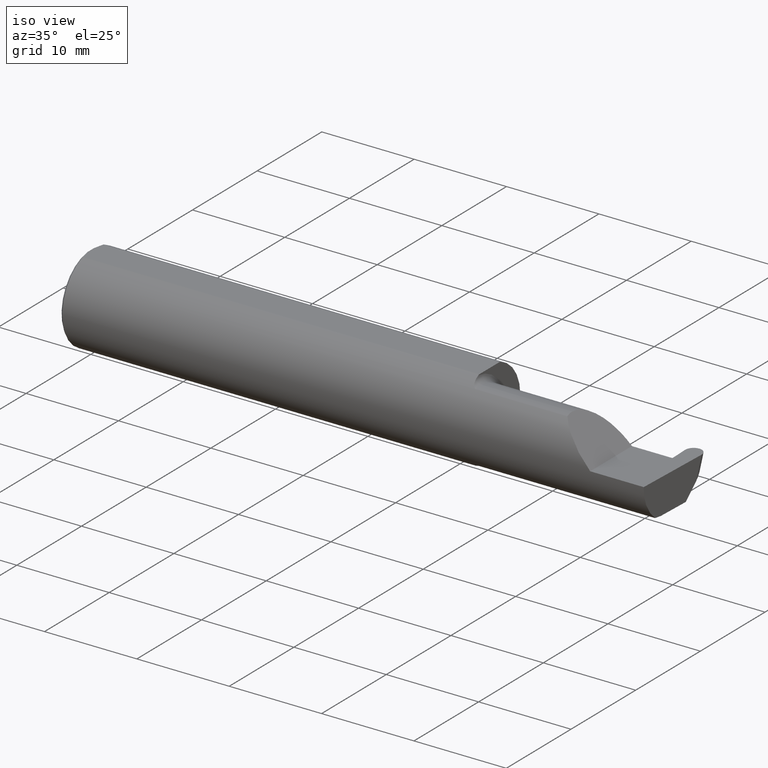
[diagram: clean part render]
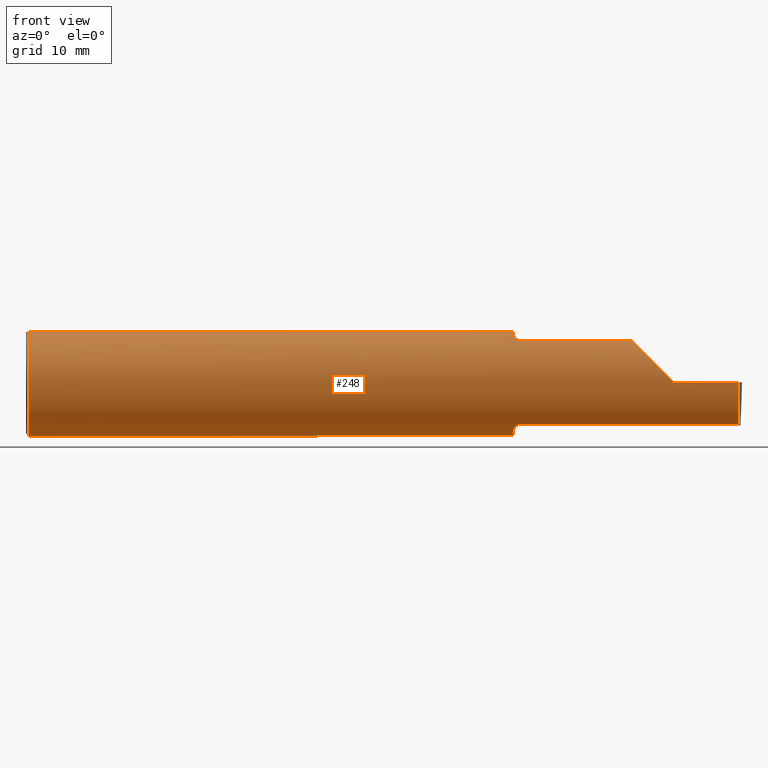
[diagram: tour spotlight — one face highlighted and labeled with its STEP entity id]
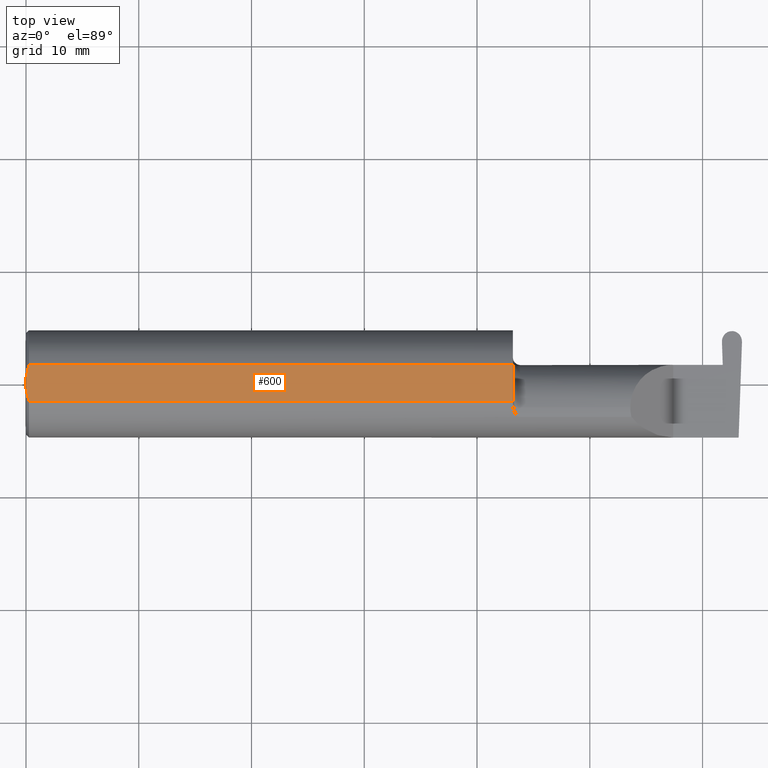
[diagram: tour spotlight — one face highlighted and labeled with its STEP entity id]
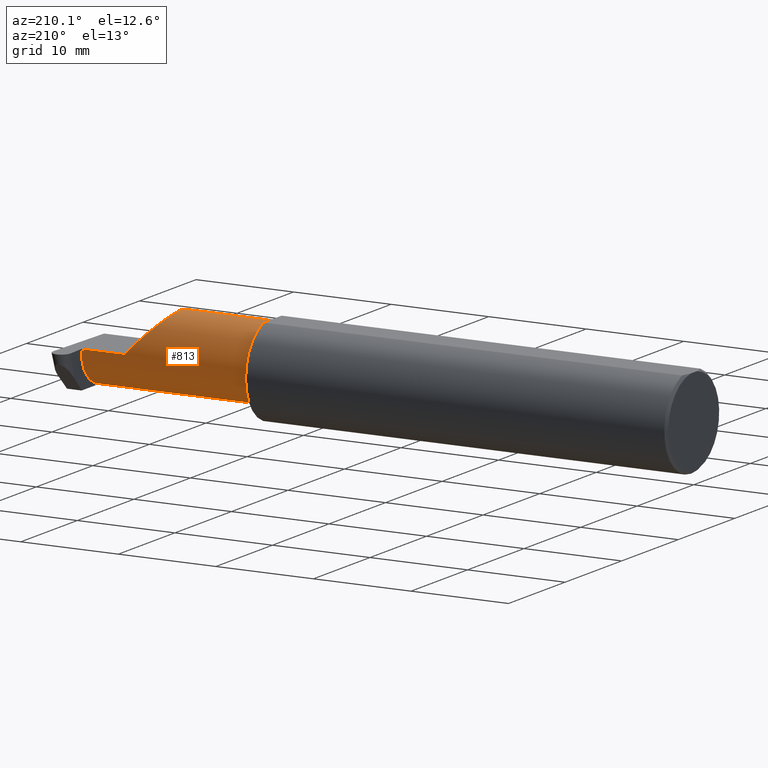
[diagram: tour spotlight — one face highlighted and labeled with its STEP entity id]
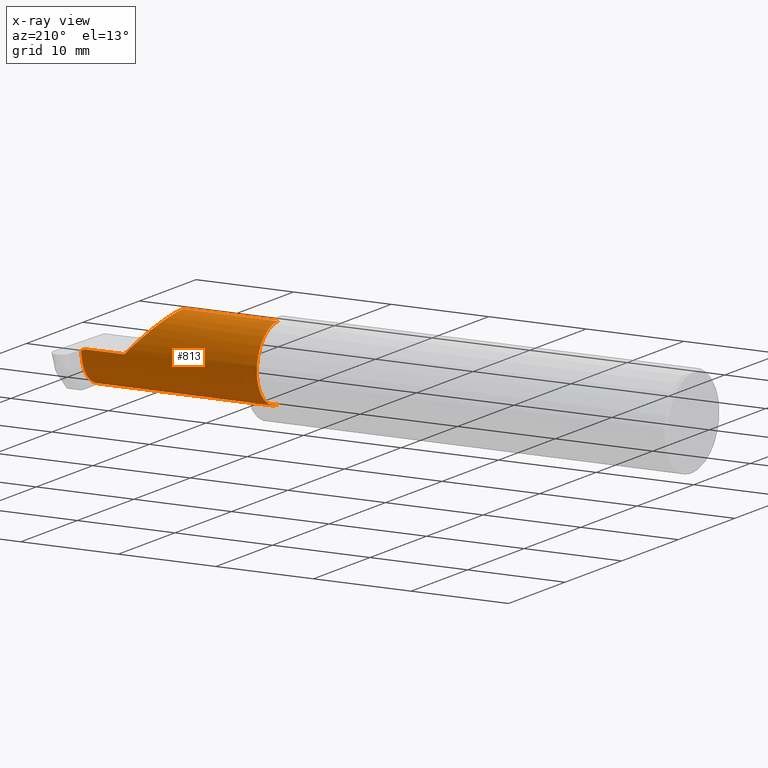
[diagram: x-ray of the same camera — body ghosted, this tour face saturated]
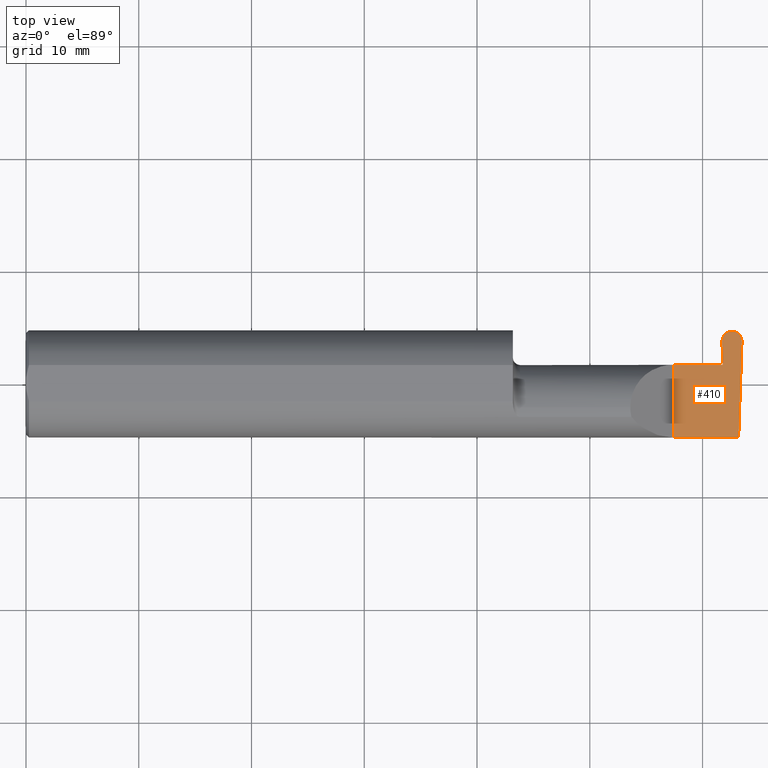
[diagram: tour spotlight — one face highlighted and labeled with its STEP entity id]
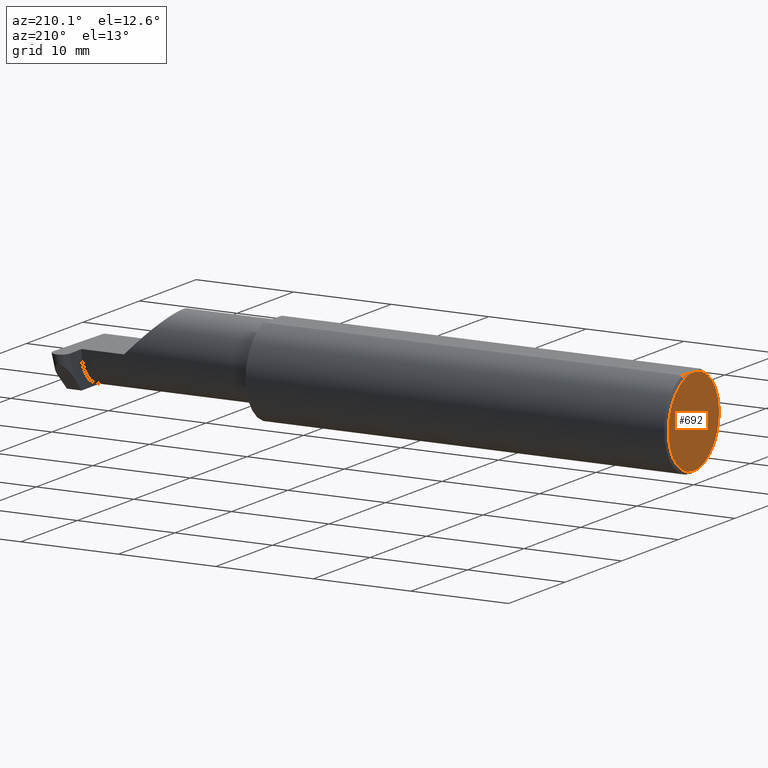
[diagram: tour spotlight — one face highlighted and labeled with its STEP entity id]
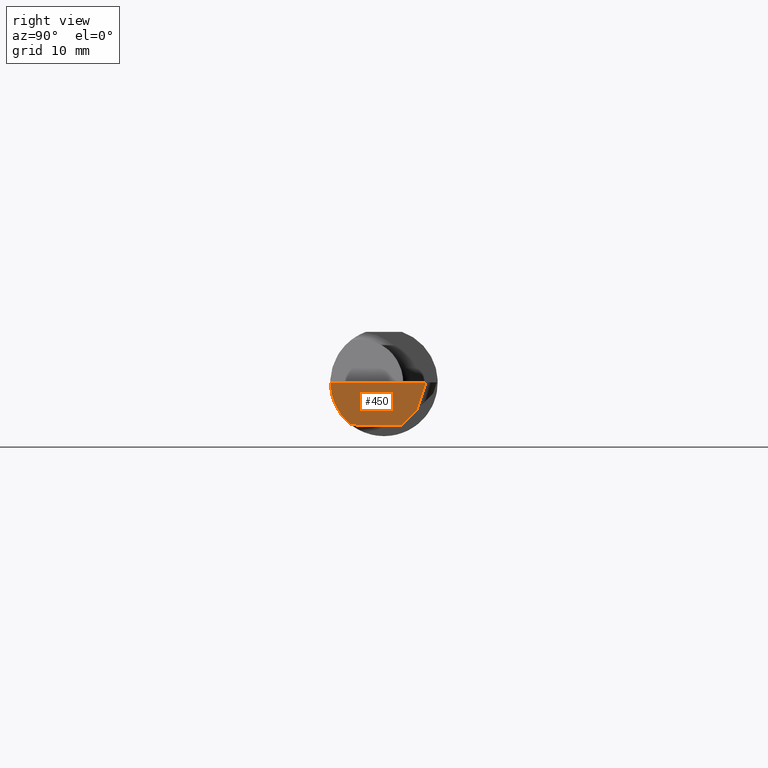
[diagram: tour spotlight — one face highlighted and labeled with its STEP entity id]
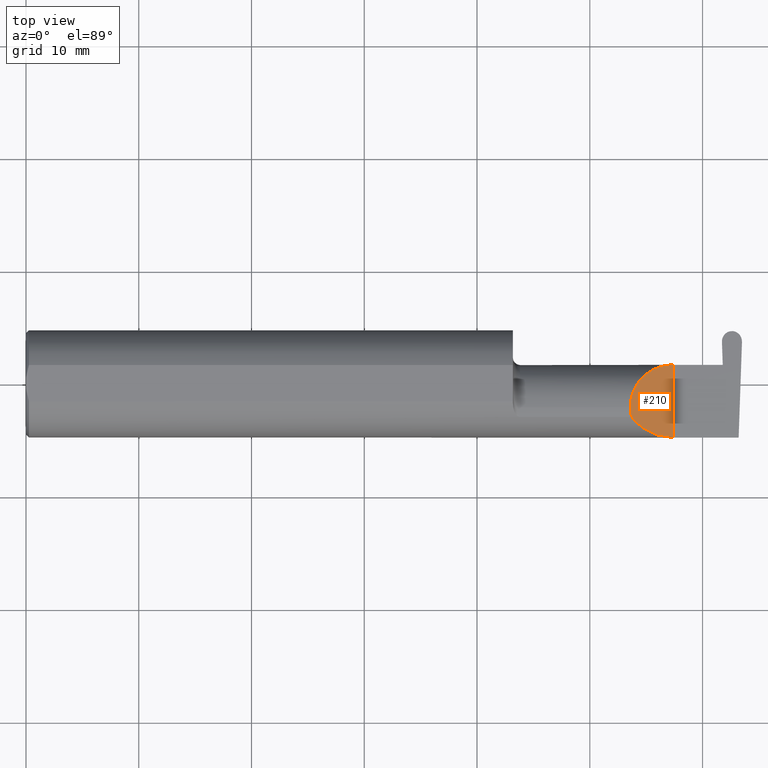
[diagram: tour spotlight — one face highlighted and labeled with its STEP entity id]
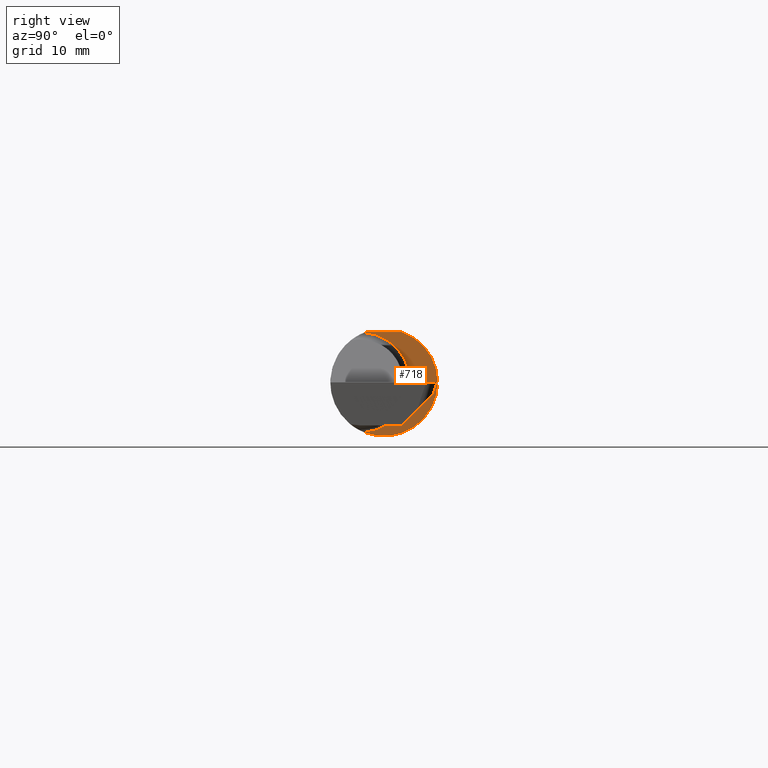
[diagram: tour spotlight — one face highlighted and labeled with its STEP entity id]
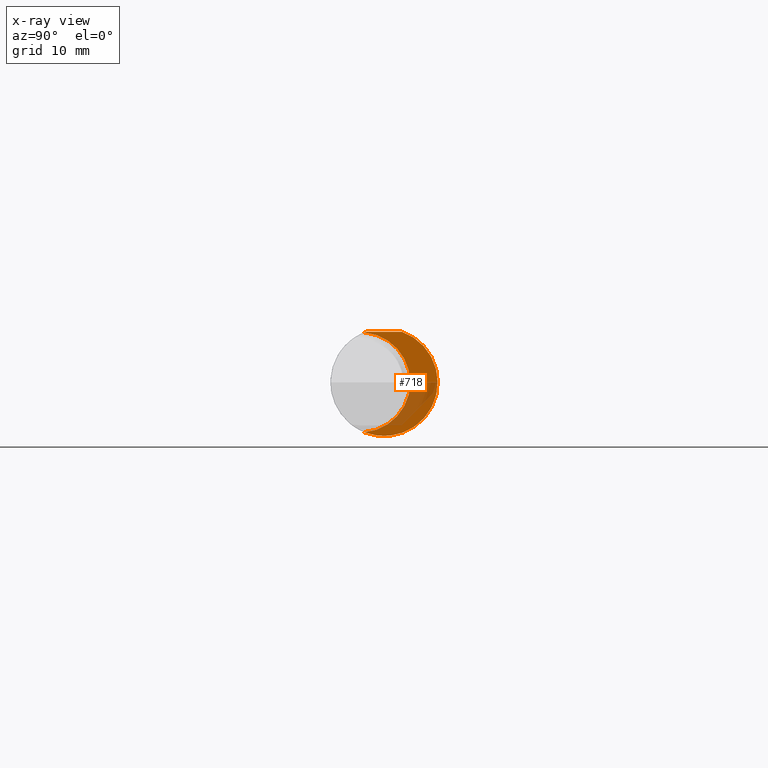
[diagram: x-ray of the same camera — body ghosted, this tour face saturated]
A machine part: a face-by-face anatomy tour. The part has 23 B-rep faces; the first image is the clean iso view, then the 8 largest visible faces are spotlighted one at a time (largest first), each with its STEP entity span.

Face 1 — front view, entity #248. In plain terms, the highlighted cylindrical surface (partial cylindrical patch) has radius 4.7587 mm, axis along (-1, -0, -0).
Definition (entity closure, byte-faithful):
#4 = CARTESIAN_POINT ( 'NONE',  ( 2.113883229301068312, -0.1172600179964008171, 0.1461167706989301707 ) ) ;
#5 = CARTESIAN_POINT ( 'NONE',  ( 2.260000000000000231, -0.1873499999999999888, 2.939152317953647352E-17 ) ) ;
#7 = ORIENTED_EDGE ( 'NONE', *, *, #563, .T. ) ;
#13 = DIRECTION ( 'NONE',  ( 0.000000000000000000, 0.000000000000000000, 1.000000000000000000 ) ) ;
#16 = EDGE_CURVE ( 'NONE', #363, #76, #395, .T. ) ;
#17 = CARTESIAN_POINT ( 'NONE',  ( 1.699999999999999956, -0.06851976604679071992, -0.1743704796142198366 ) ) ;
#19 = ORIENTED_EDGE ( 'NONE', *, *, #435, .F. ) ;
#20 = DIRECTION ( 'NONE',  ( 1.000000000000000000, 0.000000000000000000, 0.000000000000000000 ) ) ;
#28 = LINE ( 'NONE', #216, #393 ) ;
#37 = CARTESIAN_POINT ( 'NONE',  ( 1.705806801261507077, -0.1009700360460132340, -0.1578590382459147401 ) ) ;
#48 = CIRCLE ( 'NONE', #748, 0.1873499999999999888 ) ;
#67 = EDGE_CURVE ( 'NONE', #76, #663, #752, .T. ) ;
#74 = CARTESIAN_POINT ( 'NONE',  ( 0.01000000000000013205, 0.000000000000000000, 0.000000000000000000 ) ) ;
#75 = CYLINDRICAL_SURFACE ( 'NONE', #215, 0.1873499999999999888 ) ;
#76 = VERTEX_POINT ( 'NONE', #490 ) ;
#77 = B_SPLINE_CURVE_WITH_KNOTS ( 'NONE', 3,
 ( #404, #796, #341, #281, #658, #729, #662, #37, #97, #278, #336, #530 ),
 .UNSPECIFIED., .F., .F.,
 ( 4, 2, 2, 2, 2, 4 ),
 ( 1.967976973658592312E-07, 0.0001599896235275545693, 0.0003197824493577432442, 0.0006393681010181212444, 0.0009589537526784992988, 0.001278539404338877245 ),
 .UNSPECIFIED. ) ;
#78 = EDGE_CURVE ( 'NONE', #805, #495, #553, .T. ) ;
#85 = ORIENTED_EDGE ( 'NONE', *, *, #539, .F. ) ;
#87 = CARTESIAN_POINT ( 'NONE',  ( 1.699999999999999289, -0.07360907839729502466, 0.1723706084642000480 ) ) ;
#91 = ORIENTED_EDGE ( 'NONE', *, *, #131, .T. ) ;
#94 =( BOUNDED_CURVE ( )  B_SPLINE_CURVE ( 3, ( #5, #251, #233, #630 ),
 .UNSPECIFIED., .F., .T. ) 
 B_SPLINE_CURVE_WITH_KNOTS ( ( 4, 4 ),
 ( 4.712388980384688786, 5.606916381293135743 ),
 .UNSPECIFIED. ) 
 CURVE ( )  GEOMETRIC_REPRESENTATION_ITEM ( )  RATIONAL_B_SPLINE_CURVE ( ( 1.000000000000000000, 0.9344226172588803170, 0.9344226172588803170, 1.000000000000000000 ) ) 
 REPRESENTATION_ITEM ( '' )  );
#97 = CARTESIAN_POINT ( 'NONE',  ( 1.704475235432781455, -0.09757364237049408195, -0.1599863467203317680 ) ) ;
#98 = ORIENTED_EDGE ( 'NONE', *, *, #139, .F. ) ;
#100 = CARTESIAN_POINT ( 'NONE',  ( 0.01000000000000013205, 0.06325108694718235836, 0.1763499999999999235 ) ) ;
#110 = AXIS2_PLACEMENT_3D ( 'NONE', #792, #340, #593 ) ;
#115 = CARTESIAN_POINT ( 'NONE',  ( 1.724999999999999867, -0.1172600179964006645, 0.1461167706989303372 ) ) ;
#117 = ORIENTED_EDGE ( 'NONE', *, *, #271, .T. ) ;
#121 = ORIENTED_EDGE ( 'NONE', *, *, #78, .F. ) ;
#131 = EDGE_CURVE ( 'NONE', #663, #495, #94, .T. ) ;
#139 = EDGE_CURVE ( 'NONE', #358, #253, #418, .T. ) ;
#145 = CARTESIAN_POINT ( 'NONE',  ( 1.701062863587535334, -0.08334999999999991027, -0.1677879614275112619 ) ) ;
#165 = EDGE_CURVE ( 'NONE', #363, #794, #187, .T. ) ;
#167 = CARTESIAN_POINT ( 'NONE',  ( 1.720724556588812071, -0.1172600179964061184, 0.1461167706989260351 ) ) ;
#176 = VECTOR ( 'NONE', #616, 39.37007874015748143 ) ;
#180 = DIRECTION ( 'NONE',  ( 1.000000000000000000, 0.000000000000000000, 0.000000000000000000 ) ) ;
#187 = LINE ( 'NONE', #193, #176 ) ;
#189 = VERTEX_POINT ( 'NONE', #319 ) ;
#193 = CARTESIAN_POINT ( 'NONE',  ( 2.077422719999999945, -0.1172600179964006784, -0.1461167706989303650 ) ) ;
#195 = CARTESIAN_POINT ( 'NONE',  ( 1.700344683557281300, -0.07855153123406186100, 0.1701716388274757408 ) ) ;
#202 = ORIENTED_EDGE ( 'NONE', *, *, #16, .T. ) ;
#204 = DIRECTION ( 'NONE',  ( 0.000000000000000000, 0.000000000000000000, -1.000000000000000000 ) ) ;
#215 = AXIS2_PLACEMENT_3D ( 'NONE', #378, #707, #13 ) ;
#216 = CARTESIAN_POINT ( 'NONE',  ( 0.000000000000000000, 0.06325108694718235836, 0.1763499999999999235 ) ) ;
#222 = ORIENTED_EDGE ( 'NONE', *, *, #632, .F. ) ;
#229 = CARTESIAN_POINT ( 'NONE',  ( 1.704075010165368775, -0.09778159395695865119, 0.1599914159748310472 ) ) ;
#233 = CARTESIAN_POINT ( 'NONE',  ( 2.150065971957465294, -0.1623470442677542591, 0.1099340280425336325 ) ) ;
#241 = VERTEX_POINT ( 'NONE', #145 ) ;
#248 = ADVANCED_FACE ( 'NONE', ( #269 ), #75, .T. ) ;
#251 = CARTESIAN_POINT ( 'NONE',  ( 2.202189699843948745, -0.1873500000000000443, 0.05781030015605096578 ) ) ;
#253 = VERTEX_POINT ( 'NONE', #261 ) ;
#260 = CARTESIAN_POINT ( 'NONE',  ( 0.000000000000000000, -0.06325108694718235836, 0.1763499999999999235 ) ) ;
#261 = CARTESIAN_POINT ( 'NONE',  ( 1.699999999999999956, -0.06851976604679071992, 0.1743704796142198366 ) ) ;
#269 = FACE_OUTER_BOUND ( 'NONE', #777, .T. ) ;
#270 = ORIENTED_EDGE ( 'NONE', *, *, #413, .F. ) ;
#271 = EDGE_CURVE ( 'NONE', #491, #189, #326, .T. ) ;
#274 = VERTEX_POINT ( 'NONE', #785 ) ;
#278 = CARTESIAN_POINT ( 'NONE',  ( 1.702380638915944600, -0.09060738690120614947, -0.1640321561807271122 ) ) ;
#281 = CARTESIAN_POINT ( 'NONE',  ( 1.717163414264744281, -0.1151183835841406849, -0.1478135984872520625 ) ) ;
#284 = CARTESIAN_POINT ( 'NONE',  ( 1.702158970028690321, -0.09067355718685707333, 0.1641499263364886718 ) ) ;
#316 = DIRECTION ( 'NONE',  ( 1.000000000000000000, 0.000000000000000000, 0.000000000000000000 ) ) ;
#317 = ORIENTED_EDGE ( 'NONE', *, *, #767, .F. ) ;
#319 = CARTESIAN_POINT ( 'NONE',  ( 0.01000000000000013205, 0.000000000000000000, -0.1873499999999999888 ) ) ;
#326 = CIRCLE ( 'NONE', #655, 0.1873499999999999888 ) ;
#332 = CARTESIAN_POINT ( 'NONE',  ( 2.488151344270815635, -0.1172600179964006784, -0.1461167706989303650 ) ) ;
#333 = VERTEX_POINT ( 'NONE', #653 ) ;
#336 = CARTESIAN_POINT ( 'NONE',  ( 1.701612951569643872, -0.08702537370779857284, -0.1659621904011592819 ) ) ;
#340 = DIRECTION ( 'NONE',  ( 1.000000000000000000, 0.000000000000000000, 0.000000000000000000 ) ) ;
#341 = CARTESIAN_POINT ( 'NONE',  ( 1.720804171164107332, -0.1167508198888949772, -0.1465276362740037253 ) ) ;
#342 = CARTESIAN_POINT ( 'NONE',  ( 2.487246082891137355, -0.1873500000000000165, -0.05781030015605123640 ) ) ;
#357 = DIRECTION ( 'NONE',  ( -1.000000000000000000, -0.000000000000000000, -0.000000000000000000 ) ) ;
#358 = VERTEX_POINT ( 'NONE', #507 ) ;
#362 = DIRECTION ( 'NONE',  ( 1.000000000000000000, 0.000000000000000000, 0.000000000000000000 ) ) ;
#363 = VERTEX_POINT ( 'NONE', #332 ) ;
#368 = CARTESIAN_POINT ( 'NONE',  ( 1.699999999999999956, 0.000000000000000000, 0.000000000000000000 ) ) ;
#370 = CARTESIAN_POINT ( 'NONE',  ( 2.077422719999999945, -0.1172600179964006784, 0.1461167706989303650 ) ) ;
#376 = DIRECTION ( 'NONE',  ( 1.000000000000000000, 0.000000000000000000, 0.000000000000000000 ) ) ;
#378 = CARTESIAN_POINT ( 'NONE',  ( 0.000000000000000000, 0.000000000000000000, 0.000000000000000000 ) ) ;
#393 = VECTOR ( 'NONE', #520, 39.37007874015748143 ) ;
#395 =( BOUNDED_CURVE ( )  B_SPLINE_CURVE ( 3, ( #531, #405, #342, #602 ),
 .UNSPECIFIED., .F., .T. ) 
 B_SPLINE_CURVE_WITH_KNOTS ( ( 4, 4 ),
 ( 5.852427379562161747, 6.746954780470609592 ),
 .UNSPECIFIED. ) 
 CURVE ( )  GEOMETRIC_REPRESENTATION_ITEM ( )  RATIONAL_B_SPLINE_CURVE ( ( 1.000000000000000000, 0.9344226172588802060, 0.9344226172588802060, 1.000000000000000000 ) ) 
 REPRESENTATION_ITEM ( '' )  );
#404 = CARTESIAN_POINT ( 'NONE',  ( 1.724999999999999867, -0.1172600179964006784, -0.1461167706989303650 ) ) ;
#405 = CARTESIAN_POINT ( 'NONE',  ( 2.487208827712860337, -0.1623470442677540926, -0.1099340280425339100 ) ) ;
#413 = EDGE_CURVE ( 'NONE', #794, #241, #77, .T. ) ;
#418 = CIRCLE ( 'NONE', #680, 0.1873499999999999888 ) ;
#435 = EDGE_CURVE ( 'NONE', #274, #805, #668, .T. ) ;
#445 = ORIENTED_EDGE ( 'NONE', *, *, #165, .F. ) ;
#471 = CARTESIAN_POINT ( 'NONE',  ( 1.701062863587533558, -0.08334999999998819742, 0.1677879614275170628 ) ) ;
#476 = CARTESIAN_POINT ( 'NONE',  ( 1.711319809340845488, -0.1102629523538396217, 0.1514982751257169802 ) ) ;
#485 = VECTOR ( 'NONE', #180, 39.37007874015748143 ) ;
#487 = CARTESIAN_POINT ( 'NONE',  ( 3.749399456654646757E-32, -0.1873499999999999610, 3.061616997868383634E-16 ) ) ;
#490 = CARTESIAN_POINT ( 'NONE',  ( 2.488255780514392335, -0.1873499999999999888, 0.000000000000000000 ) ) ;
#491 = VERTEX_POINT ( 'NONE', #683 ) ;
#495 = VERTEX_POINT ( 'NONE', #4 ) ;
#507 = CARTESIAN_POINT ( 'NONE',  ( 1.699999999999999956, -0.06325108694718287183, 0.1763499999999999235 ) ) ;
#517 = CARTESIAN_POINT ( 'NONE',  ( 1.701062863587533558, -0.08334999999998819742, 0.1677879614275170628 ) ) ;
#520 = DIRECTION ( 'NONE',  ( -1.000000000000000000, -0.000000000000000000, -0.000000000000000000 ) ) ;
#527 = CIRCLE ( 'NONE', #110, 0.1873499999999999888 ) ;
#530 = CARTESIAN_POINT ( 'NONE',  ( 1.701062863587535334, -0.08334999999999991027, -0.1677879614275112619 ) ) ;
#531 = CARTESIAN_POINT ( 'NONE',  ( 2.488151344270815635, -0.1172600179964006784, -0.1461167706989303650 ) ) ;
#537 = CARTESIAN_POINT ( 'NONE',  ( 1.709249444250374728, -0.1073163636891285855, 0.1536158790136665231 ) ) ;
#539 = EDGE_CURVE ( 'NONE', #253, #274, #807, .T. ) ;
#546 = EDGE_CURVE ( 'NONE', #241, #762, #618, .T. ) ;
#553 = LINE ( 'NONE', #370, #485 ) ;
#559 = ORIENTED_EDGE ( 'NONE', *, *, #546, .F. ) ;
#563 = EDGE_CURVE ( 'NONE', #189, #701, #48, .T. ) ;
#572 = CARTESIAN_POINT ( 'NONE',  ( 1.699999999999999956, -0.07359296612170568297, -0.1723769398647691520 ) ) ;
#575 = LINE ( 'NONE', #260, #614 ) ;
#580 = CARTESIAN_POINT ( 'NONE',  ( 0.01000000000000013205, 0.000000000000000000, 0.000000000000000000 ) ) ;
#587 = CARTESIAN_POINT ( 'NONE',  ( 1.724999999999999867, -0.1172600179964006645, 0.1461167706989303372 ) ) ;
#593 = DIRECTION ( 'NONE',  ( 0.000000000000000000, 0.000000000000000000, -1.000000000000000000 ) ) ;
#602 = CARTESIAN_POINT ( 'NONE',  ( 2.488255780514392335, -0.1873499999999999888, 0.000000000000000000 ) ) ;
#607 = ORIENTED_EDGE ( 'NONE', *, *, #67, .T. ) ;
#614 = VECTOR ( 'NONE', #20, 39.37007874015748143 ) ;
#616 = DIRECTION ( 'NONE',  ( -1.000000000000000000, -0.000000000000000000, -0.000000000000000000 ) ) ;
#618 = B_SPLINE_CURVE_WITH_KNOTS ( 'NONE', 3,
 ( #768, #764, #572, #17 ),
 .UNSPECIFIED., .F., .F.,
 ( 4, 4 ),
 ( 0.001278539404338877245, 0.001694873732696222440 ),
 .UNSPECIFIED. ) ;
#630 = CARTESIAN_POINT ( 'NONE',  ( 2.113883229301068312, -0.1172600179964008171, 0.1461167706989301707 ) ) ;
#632 = EDGE_CURVE ( 'NONE', #491, #358, #575, .T. ) ;
#653 = CARTESIAN_POINT ( 'NONE',  ( 1.699999999999999956, 0.06325108694718235836, 0.1763499999999999235 ) ) ;
#655 = AXIS2_PLACEMENT_3D ( 'NONE', #580, #316, #773 ) ;
#656 = ORIENTED_EDGE ( 'NONE', *, *, #712, .F. ) ;
#658 = CARTESIAN_POINT ( 'NONE',  ( 1.715551048069661411, -0.1140002044565611578, -0.1486821290834929865 ) ) ;
#662 = CARTESIAN_POINT ( 'NONE',  ( 1.709228130464466533, -0.1072797540790368376, -0.1536407449207395637 ) ) ;
#663 = VERTEX_POINT ( 'NONE', #719 ) ;
#668 = B_SPLINE_CURVE_WITH_KNOTS ( 'NONE', 3,
 ( #471, #284, #229, #537, #476, #738, #167, #115 ),
 .UNSPECIFIED., .F., .F.,
 ( 4, 2, 2, 4 ),
 ( 0.0004561457252213466573, 0.001084815134961801542, 0.001399149839832030014, 0.001713484544702258486 ),
 .UNSPECIFIED. ) ;
#680 = AXIS2_PLACEMENT_3D ( 'NONE', #368, #362, #700 ) ;
#683 = CARTESIAN_POINT ( 'NONE',  ( 0.01000000000000013205, -0.06325108694718235836, 0.1763499999999999235 ) ) ;
#696 = VECTOR ( 'NONE', #357, 39.37007874015748143 ) ;
#700 = DIRECTION ( 'NONE',  ( 0.000000000000000000, 0.000000000000000000, -1.000000000000000000 ) ) ;
#701 = VERTEX_POINT ( 'NONE', #100 ) ;
#702 = CARTESIAN_POINT ( 'NONE',  ( 1.699999999999999956, -0.06851976604679071992, 0.1743704796142198366 ) ) ;
#707 = DIRECTION ( 'NONE',  ( -1.000000000000000000, -0.000000000000000000, -0.000000000000000000 ) ) ;
#712 = EDGE_CURVE ( 'NONE', #762, #333, #527, .T. ) ;
#719 = CARTESIAN_POINT ( 'NONE',  ( 2.260000000000000231, -0.1873499999999999888, 2.939152317953647352E-17 ) ) ;
#729 = CARTESIAN_POINT ( 'NONE',  ( 1.711340974786206282, -0.1102890168945987320, -0.1514792188789464700 ) ) ;
#731 = CARTESIAN_POINT ( 'NONE',  ( 1.724999999999999867, -0.1172600179964006784, -0.1461167706989303650 ) ) ;
#738 = CARTESIAN_POINT ( 'NONE',  ( 1.716924463282974322, -0.1152182125075827540, 0.1477647100440765970 ) ) ;
#748 = AXIS2_PLACEMENT_3D ( 'NONE', #74, #376, #204 ) ;
#752 = LINE ( 'NONE', #487, #696 ) ;
#762 = VERTEX_POINT ( 'NONE', #795 ) ;
#764 = CARTESIAN_POINT ( 'NONE',  ( 1.700346246588684940, -0.07856197451716398494, -0.1701664510438046507 ) ) ;
#767 = EDGE_CURVE ( 'NONE', #333, #701, #28, .T. ) ;
#768 = CARTESIAN_POINT ( 'NONE',  ( 1.701062863587535334, -0.08334999999999991027, -0.1677879614275112619 ) ) ;
#773 = DIRECTION ( 'NONE',  ( 0.000000000000000000, 0.000000000000000000, -1.000000000000000000 ) ) ;
#777 = EDGE_LOOP ( 'NONE', ( #445, #202, #607, #91, #121, #19, #85, #98, #222, #117, #7, #317, #656, #559, #270 ) ) ;
#785 = CARTESIAN_POINT ( 'NONE',  ( 1.701062863587533558, -0.08334999999998819742, 0.1677879614275170628 ) ) ;
#792 = CARTESIAN_POINT ( 'NONE',  ( 1.699999999999999956, 0.000000000000000000, 0.000000000000000000 ) ) ;
#794 = VERTEX_POINT ( 'NONE', #731 ) ;
#795 = CARTESIAN_POINT ( 'NONE',  ( 1.699999999999999956, -0.06851976604679071992, -0.1743704796142198366 ) ) ;
#796 = CARTESIAN_POINT ( 'NONE',  ( 1.722868998470238333, -0.1172600179964006922, -0.1461167706989302539 ) ) ;
#805 = VERTEX_POINT ( 'NONE', #587 ) ;
#807 = B_SPLINE_CURVE_WITH_KNOTS ( 'NONE', 3,
 ( #702, #87, #195, #517 ),
 .UNSPECIFIED., .F., .F.,
 ( 4, 4 ),
 ( 4.423516731080805653E-05, 0.0004561457252213466573 ),
 .UNSPECIFIED. ) ;

Face 2 — top view, entity #600. In plain terms, the highlighted planar face has unit normal (0, 0, 1).
Definition (entity closure, byte-faithful):
#11 = B_SPLINE_CURVE_WITH_KNOTS ( 'NONE', 3,
 ( #132, #196, #213, #384 ),
 .UNSPECIFIED., .F., .F.,
 ( 4, 4 ),
 ( 0.009771445421851331775, 0.01092787937989104369 ),
 .UNSPECIFIED. ) ;
#20 = DIRECTION ( 'NONE',  ( 1.000000000000000000, 0.000000000000000000, 0.000000000000000000 ) ) ;
#28 = LINE ( 'NONE', #216, #393 ) ;
#41 = CARTESIAN_POINT ( 'NONE',  ( 0.000000000000000000, 0.01880691362238934988, 0.1763499999999999235 ) ) ;
#61 = ORIENTED_EDGE ( 'NONE', *, *, #191, .F. ) ;
#99 = EDGE_CURVE ( 'NONE', #358, #333, #428, .T. ) ;
#100 = CARTESIAN_POINT ( 'NONE',  ( 0.01000000000000013205, 0.06325108694718235836, 0.1763499999999999235 ) ) ;
#132 = CARTESIAN_POINT ( 'NONE',  ( 0.01000000000000013205, -0.06325108694718235836, 0.1763499999999999235 ) ) ;
#148 = DIRECTION ( 'NONE',  ( -0.000000000000000000, 1.000000000000000000, -0.000000000000000000 ) ) ;
#170 = EDGE_LOOP ( 'NONE', ( #197, #515, #637, #194, #570, #61 ) ) ;
#183 = DIRECTION ( 'NONE',  ( 0.000000000000000000, 1.000000000000000000, 0.000000000000000000 ) ) ;
#191 = EDGE_CURVE ( 'NONE', #491, #730, #11, .T. ) ;
#194 = ORIENTED_EDGE ( 'NONE', *, *, #778, .F. ) ;
#196 = CARTESIAN_POINT ( 'NONE',  ( 0.005151108632379722968, -0.04888864921576022843, 0.1763499999999999235 ) ) ;
#197 = ORIENTED_EDGE ( 'NONE', *, *, #632, .T. ) ;
#207 = DIRECTION ( 'NONE',  ( 0.000000000000000000, 0.000000000000000000, 1.000000000000000000 ) ) ;
#208 = LINE ( 'NONE', #584, #565 ) ;
#211 = B_SPLINE_CURVE_WITH_KNOTS ( 'NONE', 3,
 ( #283, #529, #536, #409 ),
 .UNSPECIFIED., .F., .F.,
 ( 4, 4 ),
 ( 0.01188664626022242071, 0.01304646959483746725 ),
 .UNSPECIFIED. ) ;
#213 = CARTESIAN_POINT ( 'NONE',  ( 0.001595548104417008695, -0.03385300050298640367, 0.1763499999999999235 ) ) ;
#216 = CARTESIAN_POINT ( 'NONE',  ( 0.000000000000000000, 0.06325108694718235836, 0.1763499999999999235 ) ) ;
#260 = CARTESIAN_POINT ( 'NONE',  ( 0.000000000000000000, -0.06325108694718235836, 0.1763499999999999235 ) ) ;
#283 = CARTESIAN_POINT ( 'NONE',  ( 0.000000000000000000, 0.01880691362238934988, 0.1763499999999999235 ) ) ;
#329 = EDGE_CURVE ( 'NONE', #730, #426, #208, .T. ) ;
#333 = VERTEX_POINT ( 'NONE', #653 ) ;
#338 = AXIS2_PLACEMENT_3D ( 'NONE', #779, #207, #512 ) ;
#358 = VERTEX_POINT ( 'NONE', #507 ) ;
#384 = CARTESIAN_POINT ( 'NONE',  ( 0.000000000000000000, -0.01880691362238934641, 0.1763499999999999235 ) ) ;
#393 = VECTOR ( 'NONE', #520, 39.37007874015748143 ) ;
#409 = CARTESIAN_POINT ( 'NONE',  ( 0.01000000000000013205, 0.06325108694718235836, 0.1763499999999999235 ) ) ;
#426 = VERTEX_POINT ( 'NONE', #41 ) ;
#428 = LINE ( 'NONE', #757, #750 ) ;
#454 = CARTESIAN_POINT ( 'NONE',  ( 0.000000000000000000, -0.01880691362238934641, 0.1763499999999999235 ) ) ;
#491 = VERTEX_POINT ( 'NONE', #683 ) ;
#507 = CARTESIAN_POINT ( 'NONE',  ( 1.699999999999999956, -0.06325108694718287183, 0.1763499999999999235 ) ) ;
#512 = DIRECTION ( 'NONE',  ( 1.000000000000000000, 0.000000000000000000, -0.000000000000000000 ) ) ;
#515 = ORIENTED_EDGE ( 'NONE', *, *, #99, .T. ) ;
#520 = DIRECTION ( 'NONE',  ( -1.000000000000000000, -0.000000000000000000, -0.000000000000000000 ) ) ;
#529 = CARTESIAN_POINT ( 'NONE',  ( 0.001616639753276021213, 0.03405189565400638246, 0.1763499999999999235 ) ) ;
#536 = CARTESIAN_POINT ( 'NONE',  ( 0.005155213631852493573, 0.04890080824240055496, 0.1763499999999999235 ) ) ;
#565 = VECTOR ( 'NONE', #148, 39.37007874015748143 ) ;
#570 = ORIENTED_EDGE ( 'NONE', *, *, #329, .F. ) ;
#575 = LINE ( 'NONE', #260, #614 ) ;
#584 = CARTESIAN_POINT ( 'NONE',  ( 0.000000000000000000, 0.1873499999999998500, 0.1763499999999999235 ) ) ;
#600 = ADVANCED_FACE ( 'NONE', ( #710 ), #640, .T. ) ;
#614 = VECTOR ( 'NONE', #20, 39.37007874015748143 ) ;
#632 = EDGE_CURVE ( 'NONE', #491, #358, #575, .T. ) ;
#637 = ORIENTED_EDGE ( 'NONE', *, *, #767, .T. ) ;
#640 = PLANE ( 'NONE',  #338 ) ;
#653 = CARTESIAN_POINT ( 'NONE',  ( 1.699999999999999956, 0.06325108694718235836, 0.1763499999999999235 ) ) ;
#683 = CARTESIAN_POINT ( 'NONE',  ( 0.01000000000000013205, -0.06325108694718235836, 0.1763499999999999235 ) ) ;
#701 = VERTEX_POINT ( 'NONE', #100 ) ;
#710 = FACE_OUTER_BOUND ( 'NONE', #170, .T. ) ;
#730 = VERTEX_POINT ( 'NONE', #454 ) ;
#750 = VECTOR ( 'NONE', #183, 39.37007874015748143 ) ;
#757 = CARTESIAN_POINT ( 'NONE',  ( 1.699999999999999956, 0.1873499999999998500, 0.1763499999999999235 ) ) ;
#767 = EDGE_CURVE ( 'NONE', #333, #701, #28, .T. ) ;
#778 = EDGE_CURVE ( 'NONE', #426, #701, #211, .T. ) ;
#779 = CARTESIAN_POINT ( 'NONE',  ( 2.876828993045917215, 0.1873499999999998500, 0.1763499999999999235 ) ) ;

Face 3 — auxiliary view, entity #813. An x-ray twin of the same camera follows (body ghosted, this face saturated) — the face is partly hidden behind the body. In plain terms, the highlighted cylindrical surface (partial cylindrical patch) has radius 3.81 mm, axis along (-1, -0, -0).
Definition (entity closure, byte-faithful):
#8 = AXIS2_PLACEMENT_3D ( 'NONE', #346, #150, #397 ) ;
#22 = CARTESIAN_POINT ( 'NONE',  ( 2.423568674585635296, 0.06661954135095468632, -0.001744974835126649739 ) ) ;
#34 = EDGE_CURVE ( 'NONE', #727, #68, #633, .T. ) ;
#46 = ORIENTED_EDGE ( 'NONE', *, *, #528, .T. ) ;
#68 = VERTEX_POINT ( 'NONE', #307 ) ;
#69 = CARTESIAN_POINT ( 'NONE',  ( 2.435450603568175776, 0.002105059811798063937, -0.1500000000000000222 ) ) ;
#86 = AXIS2_PLACEMENT_3D ( 'NONE', #734, #219, #672 ) ;
#130 = CARTESIAN_POINT ( 'NONE',  ( 2.435477556824171330, -0.08334999999999999354, -0.1500000000000000222 ) ) ;
#133 = ORIENTED_EDGE ( 'NONE', *, *, #277, .F. ) ;
#137 = VECTOR ( 'NONE', #486, 39.37007874015748143 ) ;
#144 = CARTESIAN_POINT ( 'NONE',  ( 2.435477556824171330, -0.08334999999999999354, -0.1500000000000000222 ) ) ;
#146 = VERTEX_POINT ( 'NONE', #501 ) ;
#149 = ORIENTED_EDGE ( 'NONE', *, *, #34, .F. ) ;
#150 = DIRECTION ( 'NONE',  ( -1.000000000000000000, -0.000000000000000000, -0.000000000000000000 ) ) ;
#173 = VECTOR ( 'NONE', #328, 39.37007874015748143 ) ;
#178 = VERTEX_POINT ( 'NONE', #747 ) ;
#192 = CARTESIAN_POINT ( 'NONE',  ( 2.172132034355963359, 0.06664999999999998703, 0.08786796564403573373 ) ) ;
#199 = CARTESIAN_POINT ( 'NONE',  ( 2.423507757287544528, 0.06655862405286419592, -0.005234924505379946399 ) ) ;
#212 = CARTESIAN_POINT ( 'NONE',  ( 1.699999999999999956, -0.08334999999999999354, 0.1499999999999999944 ) ) ;
#219 = DIRECTION ( 'NONE',  ( -1.000000000000000000, -0.000000000000000000, -0.000000000000000000 ) ) ;
#240 = DIRECTION ( 'NONE',  ( -1.000000000000000000, -0.000000000000000000, -0.000000000000000000 ) ) ;
#257 = CARTESIAN_POINT ( 'NONE',  ( 2.260000000000000231, 0.06664999999999998703, 9.797174393178831081E-17 ) ) ;
#277 = EDGE_CURVE ( 'NONE', #68, #648, #677, .T. ) ;
#294 = LINE ( 'NONE', #547, #137 ) ;
#307 = CARTESIAN_POINT ( 'NONE',  ( 2.423507757287544528, 0.06655862405286419592, -0.005234924505379946399 ) ) ;
#312 = CARTESIAN_POINT ( 'NONE',  ( 2.423538215936590134, 0.06658908270190944112, -0.003489949670253299913 ) ) ;
#322 = EDGE_CURVE ( 'NONE', #582, #554, #521, .T. ) ;
#328 = DIRECTION ( 'NONE',  ( -1.000000000000000000, -0.000000000000000000, -0.000000000000000000 ) ) ;
#346 = CARTESIAN_POINT ( 'NONE',  ( 1.699999999999999956, -0.08334999999999999354, 0.000000000000000000 ) ) ;
#397 = DIRECTION ( 'NONE',  ( 0.000000000000000000, 0.000000000000000000, 1.000000000000000000 ) ) ;
#406 = FACE_OUTER_BOUND ( 'NONE', #549, .T. ) ;
#436 = CARTESIAN_POINT ( 'NONE',  ( 2.434358557599728634, 0.06357628547474593328, -0.09063792740366179157 ) ) ;
#439 = CARTESIAN_POINT ( 'NONE',  ( 2.432814406597916257, 0.06655862405284602989, -0.005234924505382013322 ) ) ;
#442 = ORIENTED_EDGE ( 'NONE', *, *, #322, .T. ) ;
#443 = CARTESIAN_POINT ( 'NONE',  ( 2.109999999999998987, -0.08334999999999999354, 0.1499999999999999944 ) ) ;
#444 = CARTESIAN_POINT ( 'NONE',  ( 2.423599133234680458, 0.06664999999999991764, 0.000000000000000000 ) ) ;
#458 = ORIENTED_EDGE ( 'NONE', *, *, #782, .F. ) ;
#470 = CARTESIAN_POINT ( 'NONE',  ( 2.432814406597916257, 0.06655862405284602989, -0.005234924505382013322 ) ) ;
#477 = EDGE_CURVE ( 'NONE', #146, #648, #294, .T. ) ;
#486 = DIRECTION ( 'NONE',  ( 1.000000000000000000, 0.000000000000000000, 0.000000000000000000 ) ) ;
#501 = CARTESIAN_POINT ( 'NONE',  ( 2.260000000000000231, 0.06664999999999998703, 9.797174393178831081E-17 ) ) ;
#504 = CARTESIAN_POINT ( 'NONE',  ( 1.724999999999999867, -0.08334999999999997966, -0.1499999999999999944 ) ) ;
#508 = ORIENTED_EDGE ( 'NONE', *, *, #558, .F. ) ;
#518 = CARTESIAN_POINT ( 'NONE',  ( 1.699999999999999956, -0.08334999999999997966, -0.1499999999999999944 ) ) ;
#521 = LINE ( 'NONE', #518, #173 ) ;
#528 = EDGE_CURVE ( 'NONE', #178, #146, #606, .T. ) ;
#547 = CARTESIAN_POINT ( 'NONE',  ( 1.699999999999999956, 0.06664999999999998703, 9.797174393178831081E-17 ) ) ;
#549 = EDGE_LOOP ( 'NONE', ( #508, #442, #458, #595, #46, #645, #133, #149 ) ) ;
#554 = VERTEX_POINT ( 'NONE', #504 ) ;
#558 = EDGE_CURVE ( 'NONE', #582, #727, #592, .T. ) ;
#581 = VECTOR ( 'NONE', #240, 39.37007874015748143 ) ;
#582 = VERTEX_POINT ( 'NONE', #130 ) ;
#592 =( BOUNDED_CURVE ( )  B_SPLINE_CURVE ( 3, ( #144, #69, #436, #439 ),
 .UNSPECIFIED., .F., .T. ) 
 B_SPLINE_CURVE_WITH_KNOTS ( ( 4, 4 ),
 ( 3.159045946109736214, 4.694935687864695950 ),
 .UNSPECIFIED. ) 
 CURVE ( )  GEOMETRIC_REPRESENTATION_ITEM ( )  RATIONAL_B_SPLINE_CURVE ( ( 1.000000000000000000, 0.8128932002257790446, 0.8128932002257790446, 1.000000000000000000 ) ) 
 REPRESENTATION_ITEM ( '' )  );
#595 = ORIENTED_EDGE ( 'NONE', *, *, #685, .F. ) ;
#606 =( BOUNDED_CURVE ( )  B_SPLINE_CURVE ( 3, ( #443, #706, #192, #257 ),
 .UNSPECIFIED., .F., .T. ) 
 B_SPLINE_CURVE_WITH_KNOTS ( ( 4, 4 ),
 ( 0.000000000000000000, 1.570796326794896336 ),
 .UNSPECIFIED. ) 
 CURVE ( )  GEOMETRIC_REPRESENTATION_ITEM ( )  RATIONAL_B_SPLINE_CURVE ( ( 1.000000000000000000, 0.8047378541243650485, 0.8047378541243650485, 1.000000000000000000 ) ) 
 REPRESENTATION_ITEM ( '' )  );
#633 = LINE ( 'NONE', #814, #581 ) ;
#645 = ORIENTED_EDGE ( 'NONE', *, *, #477, .T. ) ;
#648 = VERTEX_POINT ( 'NONE', #775 ) ;
#651 = CIRCLE ( 'NONE', #86, 0.1499999999999999944 ) ;
#669 = CYLINDRICAL_SURFACE ( 'NONE', #8, 0.1499999999999999944 ) ;
#672 = DIRECTION ( 'NONE',  ( 0.000000000000000000, 0.000000000000000000, 1.000000000000000000 ) ) ;
#674 = VERTEX_POINT ( 'NONE', #728 ) ;
#677 = B_SPLINE_CURVE_WITH_KNOTS ( 'NONE', 3,
 ( #199, #312, #22, #444 ),
 .UNSPECIFIED., .F., .F.,
 ( 4, 4 ),
 ( 0.000000000000000000, 1.000000000000000000 ),
 .UNSPECIFIED. ) ;
#685 = EDGE_CURVE ( 'NONE', #178, #674, #788, .T. ) ;
#706 = CARTESIAN_POINT ( 'NONE',  ( 2.109999999999998543, 0.004517965644035734120, 0.1499999999999999667 ) ) ;
#722 = VECTOR ( 'NONE', #737, 39.37007874015748143 ) ;
#727 = VERTEX_POINT ( 'NONE', #470 ) ;
#728 = CARTESIAN_POINT ( 'NONE',  ( 1.724999999999999867, -0.08334999999999999354, 0.1499999999999999944 ) ) ;
#734 = CARTESIAN_POINT ( 'NONE',  ( 1.724999999999999867, -0.08334999999999999354, 0.000000000000000000 ) ) ;
#737 = DIRECTION ( 'NONE',  ( -1.000000000000000000, -0.000000000000000000, -0.000000000000000000 ) ) ;
#747 = CARTESIAN_POINT ( 'NONE',  ( 2.109999999999998987, -0.08334999999999999354, 0.1499999999999999944 ) ) ;
#775 = CARTESIAN_POINT ( 'NONE',  ( 2.423599133234680458, 0.06664999999999991764, 0.000000000000000000 ) ) ;
#782 = EDGE_CURVE ( 'NONE', #674, #554, #651, .T. ) ;
#788 = LINE ( 'NONE', #212, #722 ) ;
#813 = ADVANCED_FACE ( 'NONE', ( #406 ), #669, .T. ) ;
#814 = CARTESIAN_POINT ( 'NONE',  ( 1.699999999999998845, 0.06655862405285342676, -0.005234924505688114821 ) ) ;

Face 4 — top view, entity #410. In plain terms, the highlighted planar face has unit normal (-0, 0, -1).
Definition (entity closure, byte-faithful):
#14 = EDGE_LOOP ( 'NONE', ( #465, #798, #27, #50, #671, #811, #138, #544, #631 ) ) ;
#21 =( BOUNDED_CURVE ( )  B_SPLINE_CURVE ( 3, ( #344, #156, #105, #401 ),
 .UNSPECIFIED., .F., .F. ) 
 B_SPLINE_CURVE_WITH_KNOTS ( ( 4, 4 ),
 ( 1.627103621474502271, 3.225696776093226248 ),
 .UNSPECIFIED. ) 
 CURVE ( )  GEOMETRIC_REPRESENTATION_ITEM ( )  RATIONAL_B_SPLINE_CURVE ( ( 1.000000000000000000, 0.7981407609938082626, 0.7981407609938082626, 1.000000000000000000 ) ) 
 REPRESENTATION_ITEM ( '' )  );
#25 = CARTESIAN_POINT ( 'NONE',  ( 2.260000000000000231, -0.2500000000000000555, 2.939152317953647352E-17 ) ) ;
#27 = ORIENTED_EDGE ( 'NONE', *, *, #226, .F. ) ;
#32 = CARTESIAN_POINT ( 'NONE',  ( 2.464599306921210875, 0.1846500000000000363, 0.000000000000000000 ) ) ;
#44 = CARTESIAN_POINT ( 'NONE',  ( 2.429919976494118838, 0.1468259978756917272, 0.000000000000000000 ) ) ;
#50 = ORIENTED_EDGE ( 'NONE', *, *, #185, .F. ) ;
#67 = EDGE_CURVE ( 'NONE', #76, #663, #752, .T. ) ;
#76 = VERTEX_POINT ( 'NONE', #490 ) ;
#83 = DIRECTION ( 'NONE',  ( -0.03489949670249533481, -0.9993908270190959842, 0.000000000000000000 ) ) ;
#102 =( BOUNDED_CURVE ( )  B_SPLINE_CURVE ( 3, ( #32, #273, #220, #44 ),
 .UNSPECIFIED., .F., .F. ) 
 B_SPLINE_CURVE_WITH_KNOTS ( ( 4, 4 ),
 ( 3.057488531086361760, 4.656081685705084183 ),
 .UNSPECIFIED. ) 
 CURVE ( )  GEOMETRIC_REPRESENTATION_ITEM ( )  RATIONAL_B_SPLINE_CURVE ( ( 1.000000000000000000, 0.7981407609938087067, 0.7981407609938087067, 1.000000000000000000 ) ) 
 REPRESENTATION_ITEM ( '' )  );
#105 = CARTESIAN_POINT ( 'NONE',  ( 2.486211292289216335, 0.1846500000000000641, 5.931370957970135947E-18 ) ) ;
#108 = CARTESIAN_POINT ( 'NONE',  ( -0.001039370078739994957, 0.1846500000000000363, 0.000000000000000000 ) ) ;
#137 = VECTOR ( 'NONE', #486, 39.37007874015748143 ) ;
#138 = ORIENTED_EDGE ( 'NONE', *, *, #67, .F. ) ;
#141 = DIRECTION ( 'NONE',  ( 1.000000000000000000, 7.488084056613103845E-15, -0.000000000000000000 ) ) ;
#146 = VERTEX_POINT ( 'NONE', #501 ) ;
#156 = CARTESIAN_POINT ( 'NONE',  ( 2.500694673384347144, 0.1688532867831435691, 4.157668328071865437E-18 ) ) ;
#158 = VERTEX_POINT ( 'NONE', #494 ) ;
#160 = DIRECTION ( 'NONE',  ( -1.000000000000000000, 0.000000000000000000, 1.224646799147353947E-16 ) ) ;
#177 = LINE ( 'NONE', #809, #598 ) ;
#185 = EDGE_CURVE ( 'NONE', #648, #158, #177, .T. ) ;
#190 = VECTOR ( 'NONE', #266, 39.37007874015748143 ) ;
#214 = VERTEX_POINT ( 'NONE', #391 ) ;
#220 = CARTESIAN_POINT ( 'NONE',  ( 2.429150766615653101, 0.1688532867831435691, 8.647869142229363777E-18 ) ) ;
#226 = EDGE_CURVE ( 'NONE', #158, #742, #720, .T. ) ;
#231 = LINE ( 'NONE', #108, #377 ) ;
#266 = DIRECTION ( 'NONE',  ( -0.000000000000000000, 1.000000000000000000, -0.000000000000000000 ) ) ;
#273 = CARTESIAN_POINT ( 'NONE',  ( 2.443634147710784355, 0.1846500000000000641, 6.874166512331093267E-18 ) ) ;
#286 = VECTOR ( 'NONE', #776, 39.37007874015748854 ) ;
#289 = CARTESIAN_POINT ( 'NONE',  ( 2.464599306921210875, 0.1846500000000000363, 0.000000000000000000 ) ) ;
#294 = LINE ( 'NONE', #547, #137 ) ;
#304 = EDGE_CURVE ( 'NONE', #663, #146, #448, .T. ) ;
#344 = CARTESIAN_POINT ( 'NONE',  ( 2.499925463505881851, 0.1468259978756916440, 0.000000000000000000 ) ) ;
#353 = VECTOR ( 'NONE', #83, 39.37007874015748143 ) ;
#356 = CARTESIAN_POINT ( 'NONE',  ( 2.499925463505881851, 0.1468259978756916440, 0.000000000000000000 ) ) ;
#357 = DIRECTION ( 'NONE',  ( -1.000000000000000000, -0.000000000000000000, -0.000000000000000000 ) ) ;
#377 = VECTOR ( 'NONE', #609, 39.37007874015748143 ) ;
#380 = EDGE_CURVE ( 'NONE', #408, #214, #231, .T. ) ;
#386 = EDGE_CURVE ( 'NONE', #453, #214, #21, .T. ) ;
#389 = EDGE_CURVE ( 'NONE', #408, #742, #102, .T. ) ;
#391 = CARTESIAN_POINT ( 'NONE',  ( 2.465246133078789814, 0.1846500000000000363, 0.000000000000000000 ) ) ;
#398 = PLANE ( 'NONE',  #649 ) ;
#401 = CARTESIAN_POINT ( 'NONE',  ( 2.465246133078789814, 0.1846500000000000363, 0.000000000000000000 ) ) ;
#408 = VERTEX_POINT ( 'NONE', #289 ) ;
#410 = ADVANCED_FACE ( 'NONE', ( #804 ), #398, .F. ) ;
#441 = CARTESIAN_POINT ( 'NONE',  ( 2.429866808131219802, 0.1483485405823075642, 0.000000000000000000 ) ) ;
#447 = LINE ( 'NONE', #714, #353 ) ;
#448 = LINE ( 'NONE', #25, #190 ) ;
#453 = VERTEX_POINT ( 'NONE', #356 ) ;
#465 = ORIENTED_EDGE ( 'NONE', *, *, #380, .F. ) ;
#475 = CARTESIAN_POINT ( 'NONE',  ( 2.429919976494118838, 0.1468259978756917272, 0.000000000000000000 ) ) ;
#477 = EDGE_CURVE ( 'NONE', #146, #648, #294, .T. ) ;
#486 = DIRECTION ( 'NONE',  ( 1.000000000000000000, 0.000000000000000000, 0.000000000000000000 ) ) ;
#487 = CARTESIAN_POINT ( 'NONE',  ( 3.749399456654646757E-32, -0.1873499999999999610, 3.061616997868383634E-16 ) ) ;
#490 = CARTESIAN_POINT ( 'NONE',  ( 2.488255780514392335, -0.1873499999999999888, 0.000000000000000000 ) ) ;
#494 = CARTESIAN_POINT ( 'NONE',  ( 2.432719784034706123, 0.06664999999999998703, 0.000000000000000000 ) ) ;
#501 = CARTESIAN_POINT ( 'NONE',  ( 2.260000000000000231, 0.06664999999999998703, 9.797174393178831081E-17 ) ) ;
#544 = ORIENTED_EDGE ( 'NONE', *, *, #652, .F. ) ;
#547 = CARTESIAN_POINT ( 'NONE',  ( 1.699999999999999956, 0.06664999999999998703, 9.797174393178831081E-17 ) ) ;
#598 = VECTOR ( 'NONE', #141, 39.37007874015748143 ) ;
#609 = DIRECTION ( 'NONE',  ( 1.000000000000000000, -0.000000000000000000, -0.000000000000000000 ) ) ;
#631 = ORIENTED_EDGE ( 'NONE', *, *, #386, .T. ) ;
#648 = VERTEX_POINT ( 'NONE', #775 ) ;
#649 = AXIS2_PLACEMENT_3D ( 'NONE', #800, #666, #160 ) ;
#652 = EDGE_CURVE ( 'NONE', #453, #76, #447, .T. ) ;
#663 = VERTEX_POINT ( 'NONE', #719 ) ;
#666 = DIRECTION ( 'NONE',  ( -1.224646799147353947E-16, 0.000000000000000000, -1.000000000000000000 ) ) ;
#671 = ORIENTED_EDGE ( 'NONE', *, *, #477, .F. ) ;
#696 = VECTOR ( 'NONE', #357, 39.37007874015748143 ) ;
#714 = CARTESIAN_POINT ( 'NONE',  ( 2.499978631868781331, 0.1483485405823076198, 0.000000000000000000 ) ) ;
#719 = CARTESIAN_POINT ( 'NONE',  ( 2.260000000000000231, -0.1873499999999999888, 2.939152317953647352E-17 ) ) ;
#720 = LINE ( 'NONE', #441, #286 ) ;
#742 = VERTEX_POINT ( 'NONE', #475 ) ;
#752 = LINE ( 'NONE', #487, #696 ) ;
#775 = CARTESIAN_POINT ( 'NONE',  ( 2.423599133234680458, 0.06664999999999991764, 0.000000000000000000 ) ) ;
#776 = DIRECTION ( 'NONE',  ( -0.03489949670249273966, 0.9993908270190959842, -0.000000000000000000 ) ) ;
#798 = ORIENTED_EDGE ( 'NONE', *, *, #389, .T. ) ;
#800 = CARTESIAN_POINT ( 'NONE',  ( 2.500000000000000000, -0.2500000000000000555, 0.000000000000000000 ) ) ;
#804 = FACE_OUTER_BOUND ( 'NONE', #14, .T. ) ;
#809 = CARTESIAN_POINT ( 'NONE',  ( 2.432719784034706123, 0.06664999999999998703, 0.000000000000000000 ) ) ;
#811 = ORIENTED_EDGE ( 'NONE', *, *, #304, .F. ) ;

Face 5 — auxiliary view, entity #692. In plain terms, the highlighted planar face has unit normal (1, 0, 0).
Definition (entity closure, byte-faithful):
#41 = CARTESIAN_POINT ( 'NONE',  ( 0.000000000000000000, 0.01880691362238934988, 0.1763499999999999235 ) ) ;
#43 = DIRECTION ( 'NONE',  ( 1.000000000000000000, 0.000000000000000000, 0.000000000000000000 ) ) ;
#80 = CARTESIAN_POINT ( 'NONE',  ( 0.000000000000000000, 0.000000000000000000, 0.000000000000000000 ) ) ;
#148 = DIRECTION ( 'NONE',  ( -0.000000000000000000, 1.000000000000000000, -0.000000000000000000 ) ) ;
#154 = VERTEX_POINT ( 'NONE', #295 ) ;
#155 = FACE_OUTER_BOUND ( 'NONE', #264, .T. ) ;
#208 = LINE ( 'NONE', #584, #565 ) ;
#223 = DIRECTION ( 'NONE',  ( 0.000000000000000000, 0.000000000000000000, -1.000000000000000000 ) ) ;
#243 = EDGE_CURVE ( 'NONE', #426, #154, #708, .T. ) ;
#264 = EDGE_LOOP ( 'NONE', ( #678, #511, #381 ) ) ;
#295 = CARTESIAN_POINT ( 'NONE',  ( 0.000000000000000000, 0.000000000000000000, -0.1773499999999999521 ) ) ;
#314 = AXIS2_PLACEMENT_3D ( 'NONE', #383, #451, #318 ) ;
#318 = DIRECTION ( 'NONE',  ( 0.000000000000000000, 0.000000000000000000, -1.000000000000000000 ) ) ;
#329 = EDGE_CURVE ( 'NONE', #730, #426, #208, .T. ) ;
#331 = PLANE ( 'NONE',  #420 ) ;
#381 = ORIENTED_EDGE ( 'NONE', *, *, #622, .T. ) ;
#383 = CARTESIAN_POINT ( 'NONE',  ( 0.000000000000000000, 0.000000000000000000, 0.000000000000000000 ) ) ;
#403 = CARTESIAN_POINT ( 'NONE',  ( 0.000000000000000000, 0.000000000000000000, 0.000000000000000000 ) ) ;
#420 = AXIS2_PLACEMENT_3D ( 'NONE', #403, #43, #223 ) ;
#426 = VERTEX_POINT ( 'NONE', #41 ) ;
#451 = DIRECTION ( 'NONE',  ( -1.000000000000000000, -0.000000000000000000, -0.000000000000000000 ) ) ;
#454 = CARTESIAN_POINT ( 'NONE',  ( 0.000000000000000000, -0.01880691362238934641, 0.1763499999999999235 ) ) ;
#500 = CIRCLE ( 'NONE', #314, 0.1773499999999999521 ) ;
#511 = ORIENTED_EDGE ( 'NONE', *, *, #243, .T. ) ;
#565 = VECTOR ( 'NONE', #148, 39.37007874015748143 ) ;
#576 = DIRECTION ( 'NONE',  ( 0.000000000000000000, 0.000000000000000000, -1.000000000000000000 ) ) ;
#584 = CARTESIAN_POINT ( 'NONE',  ( 0.000000000000000000, 0.1873499999999998500, 0.1763499999999999235 ) ) ;
#622 = EDGE_CURVE ( 'NONE', #154, #730, #500, .T. ) ;
#638 = AXIS2_PLACEMENT_3D ( 'NONE', #80, #780, #576 ) ;
#678 = ORIENTED_EDGE ( 'NONE', *, *, #329, .T. ) ;
#692 = ADVANCED_FACE ( 'NONE', ( #155 ), #331, .F. ) ;
#708 = CIRCLE ( 'NONE', #638, 0.1773499999999999521 ) ;
#730 = VERTEX_POINT ( 'NONE', #454 ) ;
#780 = DIRECTION ( 'NONE',  ( -1.000000000000000000, -0.000000000000000000, -0.000000000000000000 ) ) ;

Face 6 — right view, entity #450. In plain terms, the highlighted planar face has unit normal (-0.9992, 0.0349, 0.0175).
Definition (entity closure, byte-faithful):
#2 = DIRECTION ( 'NONE',  ( -0.03701744261649894674, -0.7066221440565398915, -0.7066221440565479961 ) ) ;
#16 = EDGE_CURVE ( 'NONE', #363, #76, #395, .T. ) ;
#26 = EDGE_CURVE ( 'NONE', #106, #434, #279, .T. ) ;
#39 = EDGE_CURVE ( 'NONE', #463, #453, #625, .T. ) ;
#55 = LINE ( 'NONE', #424, #325 ) ;
#59 = DIRECTION ( 'NONE',  ( -0.9992386149554828290, 0.03489418134010802836, 0.01745240643728358798 ) ) ;
#63 = PLANE ( 'NONE',  #73 ) ;
#71 = ORIENTED_EDGE ( 'NONE', *, *, #82, .F. ) ;
#73 = AXIS2_PLACEMENT_3D ( 'NONE', #556, #59, #699 ) ;
#76 = VERTEX_POINT ( 'NONE', #490 ) ;
#81 = ORIENTED_EDGE ( 'NONE', *, *, #652, .T. ) ;
#82 = EDGE_CURVE ( 'NONE', #463, #106, #55, .T. ) ;
#83 = DIRECTION ( 'NONE',  ( -0.03489949670249533481, -0.9993908270190959842, 0.000000000000000000 ) ) ;
#106 = VERTEX_POINT ( 'NONE', #689 ) ;
#119 = CARTESIAN_POINT ( 'NONE',  ( 2.488868656527756684, -0.09477667630339424443, -0.1500000000000000222 ) ) ;
#161 = ORIENTED_EDGE ( 'NONE', *, *, #16, .F. ) ;
#225 = CARTESIAN_POINT ( 'NONE',  ( 2.489564769237789577, -0.07484261642542210102, -0.1500000000000000500 ) ) ;
#242 = CARTESIAN_POINT ( 'NONE',  ( 2.499938386127352086, 0.1469717285548436947, 0.0004485129120875650118 ) ) ;
#246 = CARTESIAN_POINT ( 'NONE',  ( 2.488494925208532660, -0.1061291577212409298, -0.1486999626928446339 ) ) ;
#252 = VECTOR ( 'NONE', #354, 39.37007874015748854 ) ;
#263 =( BOUNDED_CURVE ( )  B_SPLINE_CURVE ( 3, ( #292, #246, #119, #414 ),
 .UNSPECIFIED., .F., .F. ) 
 B_SPLINE_CURVE_WITH_KNOTS ( ( 4, 4 ),
 ( 0.8789888184544294436, 1.107026853503872754 ),
 .UNSPECIFIED. ) 
 CURVE ( )  GEOMETRIC_REPRESENTATION_ITEM ( )  RATIONAL_B_SPLINE_CURVE ( ( 1.000000000000000000, 0.9956712472009929815, 0.9956712472009929815, 1.000000000000000000 ) ) 
 REPRESENTATION_ITEM ( '' )  );
#279 = LINE ( 'NONE', #225, #474 ) ;
#292 = CARTESIAN_POINT ( 'NONE',  ( 2.488151344270815635, -0.1172600179964006784, -0.1461167706989303650 ) ) ;
#325 = VECTOR ( 'NONE', #2, 39.37007874015748143 ) ;
#332 = CARTESIAN_POINT ( 'NONE',  ( 2.488151344270815635, -0.1172600179964006784, -0.1461167706989303650 ) ) ;
#342 = CARTESIAN_POINT ( 'NONE',  ( 2.487246082891137355, -0.1873500000000000165, -0.05781030015605123640 ) ) ;
#353 = VECTOR ( 'NONE', #83, 39.37007874015748143 ) ;
#354 = DIRECTION ( 'NONE',  ( 0.02739170151060053154, 0.3089010440752012476, 0.9506996579664918068 ) ) ;
#356 = CARTESIAN_POINT ( 'NONE',  ( 2.499925463505881851, 0.1468259978756916440, 0.000000000000000000 ) ) ;
#363 = VERTEX_POINT ( 'NONE', #332 ) ;
#395 =( BOUNDED_CURVE ( )  B_SPLINE_CURVE ( 3, ( #531, #405, #342, #602 ),
 .UNSPECIFIED., .F., .T. ) 
 B_SPLINE_CURVE_WITH_KNOTS ( ( 4, 4 ),
 ( 5.852427379562161747, 6.746954780470609592 ),
 .UNSPECIFIED. ) 
 CURVE ( )  GEOMETRIC_REPRESENTATION_ITEM ( )  RATIONAL_B_SPLINE_CURVE ( ( 1.000000000000000000, 0.9344226172588802060, 0.9344226172588802060, 1.000000000000000000 ) ) 
 REPRESENTATION_ITEM ( '' )  );
#400 = ORIENTED_EDGE ( 'NONE', *, *, #26, .F. ) ;
#405 = CARTESIAN_POINT ( 'NONE',  ( 2.487208827712860337, -0.1623470442677540926, -0.1099340280425339100 ) ) ;
#414 = CARTESIAN_POINT ( 'NONE',  ( 2.489267684857003893, -0.08335000000000014619, -0.1500000000000000500 ) ) ;
#419 = FACE_OUTER_BOUND ( 'NONE', #739, .T. ) ;
#424 = CARTESIAN_POINT ( 'NONE',  ( 2.496724085642930024, 0.1068785413084647890, -0.1034245102346854905 ) ) ;
#434 = VERTEX_POINT ( 'NONE', #533 ) ;
#447 = LINE ( 'NONE', #714, #353 ) ;
#450 = ADVANCED_FACE ( 'NONE', ( #419 ), #63, .F. ) ;
#453 = VERTEX_POINT ( 'NONE', #356 ) ;
#463 = VERTEX_POINT ( 'NONE', #620 ) ;
#472 = DIRECTION ( 'NONE',  ( -0.03489949670249532787, -0.9993908270190959842, 0.000000000000000000 ) ) ;
#473 = EDGE_CURVE ( 'NONE', #363, #434, #263, .T. ) ;
#474 = VECTOR ( 'NONE', #472, 39.37007874015748854 ) ;
#488 = ORIENTED_EDGE ( 'NONE', *, *, #39, .T. ) ;
#490 = CARTESIAN_POINT ( 'NONE',  ( 2.488255780514392335, -0.1873499999999999888, 0.000000000000000000 ) ) ;
#531 = CARTESIAN_POINT ( 'NONE',  ( 2.488151344270815635, -0.1172600179964006784, -0.1461167706989303650 ) ) ;
#533 = CARTESIAN_POINT ( 'NONE',  ( 2.489267684857003893, -0.08335000000000014619, -0.1500000000000000500 ) ) ;
#556 = CARTESIAN_POINT ( 'NONE',  ( 2.499978631868781331, 0.1483485405823076198, 0.000000000000000000 ) ) ;
#602 = CARTESIAN_POINT ( 'NONE',  ( 2.488255780514392335, -0.1873499999999999888, 0.000000000000000000 ) ) ;
#620 = CARTESIAN_POINT ( 'NONE',  ( 2.497216288900020675, 0.1162741585162865993, -0.09402889302686358308 ) ) ;
#625 = LINE ( 'NONE', #242, #252 ) ;
#642 = ORIENTED_EDGE ( 'NONE', *, *, #473, .T. ) ;
#652 = EDGE_CURVE ( 'NONE', #453, #76, #447, .T. ) ;
#689 = CARTESIAN_POINT ( 'NONE',  ( 2.494284159956728253, 0.06030305154315079852, -0.1500000000000000222 ) ) ;
#699 = DIRECTION ( 'NONE',  ( -0.03489949670249532787, -0.9993908270190959842, 0.000000000000000000 ) ) ;
#714 = CARTESIAN_POINT ( 'NONE',  ( 2.499978631868781331, 0.1483485405823076198, 0.000000000000000000 ) ) ;
#739 = EDGE_LOOP ( 'NONE', ( #71, #488, #81, #161, #642, #400 ) ) ;

Face 7 — top view, entity #210. In plain terms, the highlighted planar face has unit normal (-0.7071, 0, -0.7071).
Definition (entity closure, byte-faithful):
#4 = CARTESIAN_POINT ( 'NONE',  ( 2.113883229301068312, -0.1172600179964008171, 0.1461167706989301707 ) ) ;
#5 = CARTESIAN_POINT ( 'NONE',  ( 2.260000000000000231, -0.1873499999999999888, 2.939152317953647352E-17 ) ) ;
#25 = CARTESIAN_POINT ( 'NONE',  ( 2.260000000000000231, -0.2500000000000000555, 2.939152317953647352E-17 ) ) ;
#29 = PLANE ( 'NONE',  #456 ) ;
#56 =( BOUNDED_CURVE ( )  B_SPLINE_CURVE ( 3, ( #280, #343, #665, #466 ),
 .UNSPECIFIED., .F., .F. ) 
 B_SPLINE_CURVE_WITH_KNOTS ( ( 4, 4 ),
 ( 6.055147272130141367, 6.283185307179586232 ),
 .UNSPECIFIED. ) 
 CURVE ( )  GEOMETRIC_REPRESENTATION_ITEM ( )  RATIONAL_B_SPLINE_CURVE ( ( 1.000000000000000000, 0.9956712472009929815, 0.9956712472009929815, 1.000000000000000000 ) ) 
 REPRESENTATION_ITEM ( '' )  );
#94 =( BOUNDED_CURVE ( )  B_SPLINE_CURVE ( 3, ( #5, #251, #233, #630 ),
 .UNSPECIFIED., .F., .T. ) 
 B_SPLINE_CURVE_WITH_KNOTS ( ( 4, 4 ),
 ( 4.712388980384688786, 5.606916381293135743 ),
 .UNSPECIFIED. ) 
 CURVE ( )  GEOMETRIC_REPRESENTATION_ITEM ( )  RATIONAL_B_SPLINE_CURVE ( ( 1.000000000000000000, 0.9344226172588803170, 0.9344226172588803170, 1.000000000000000000 ) ) 
 REPRESENTATION_ITEM ( '' )  );
#95 = ORIENTED_EDGE ( 'NONE', *, *, #304, .T. ) ;
#131 = EDGE_CURVE ( 'NONE', #663, #495, #94, .T. ) ;
#136 = DIRECTION ( 'NONE',  ( -0.7071067811865441310, 0.000000000000000000, -0.7071067811865510144 ) ) ;
#146 = VERTEX_POINT ( 'NONE', #501 ) ;
#178 = VERTEX_POINT ( 'NONE', #747 ) ;
#190 = VECTOR ( 'NONE', #266, 39.37007874015748143 ) ;
#192 = CARTESIAN_POINT ( 'NONE',  ( 2.172132034355963359, 0.06664999999999998703, 0.08786796564403573373 ) ) ;
#205 = CARTESIAN_POINT ( 'NONE',  ( 2.260000000000000231, -0.2500000000000000555, 2.939152317953647352E-17 ) ) ;
#210 = ADVANCED_FACE ( 'NONE', ( #636 ), #29, .F. ) ;
#233 = CARTESIAN_POINT ( 'NONE',  ( 2.150065971957465294, -0.1623470442677542591, 0.1099340280425336325 ) ) ;
#251 = CARTESIAN_POINT ( 'NONE',  ( 2.202189699843948745, -0.1873500000000000443, 0.05781030015605096578 ) ) ;
#257 = CARTESIAN_POINT ( 'NONE',  ( 2.260000000000000231, 0.06664999999999998703, 9.797174393178831081E-17 ) ) ;
#266 = DIRECTION ( 'NONE',  ( -0.000000000000000000, 1.000000000000000000, -0.000000000000000000 ) ) ;
#280 = CARTESIAN_POINT ( 'NONE',  ( 2.113883229301068312, -0.1172600179964008171, 0.1461167706989301707 ) ) ;
#304 = EDGE_CURVE ( 'NONE', #663, #146, #448, .T. ) ;
#330 = ORIENTED_EDGE ( 'NONE', *, *, #528, .F. ) ;
#337 = EDGE_LOOP ( 'NONE', ( #690, #535, #95, #330 ) ) ;
#343 = CARTESIAN_POINT ( 'NONE',  ( 2.111300037307153765, -0.1061291577212410409, 0.1486999626928446061 ) ) ;
#443 = CARTESIAN_POINT ( 'NONE',  ( 2.109999999999998987, -0.08334999999999999354, 0.1499999999999999944 ) ) ;
#448 = LINE ( 'NONE', #25, #190 ) ;
#452 = DIRECTION ( 'NONE',  ( -0.7071067811865509034, 0.000000000000000000, 0.7071067811865440200 ) ) ;
#456 = AXIS2_PLACEMENT_3D ( 'NONE', #205, #136, #452 ) ;
#466 = CARTESIAN_POINT ( 'NONE',  ( 2.109999999999998987, -0.08334999999999999354, 0.1499999999999999944 ) ) ;
#495 = VERTEX_POINT ( 'NONE', #4 ) ;
#501 = CARTESIAN_POINT ( 'NONE',  ( 2.260000000000000231, 0.06664999999999998703, 9.797174393178831081E-17 ) ) ;
#528 = EDGE_CURVE ( 'NONE', #178, #146, #606, .T. ) ;
#535 = ORIENTED_EDGE ( 'NONE', *, *, #131, .F. ) ;
#606 =( BOUNDED_CURVE ( )  B_SPLINE_CURVE ( 3, ( #443, #706, #192, #257 ),
 .UNSPECIFIED., .F., .T. ) 
 B_SPLINE_CURVE_WITH_KNOTS ( ( 4, 4 ),
 ( 0.000000000000000000, 1.570796326794896336 ),
 .UNSPECIFIED. ) 
 CURVE ( )  GEOMETRIC_REPRESENTATION_ITEM ( )  RATIONAL_B_SPLINE_CURVE ( ( 1.000000000000000000, 0.8047378541243650485, 0.8047378541243650485, 1.000000000000000000 ) ) 
 REPRESENTATION_ITEM ( '' )  );
#630 = CARTESIAN_POINT ( 'NONE',  ( 2.113883229301068312, -0.1172600179964008171, 0.1461167706989301707 ) ) ;
#636 = FACE_OUTER_BOUND ( 'NONE', #337, .T. ) ;
#663 = VERTEX_POINT ( 'NONE', #719 ) ;
#665 = CARTESIAN_POINT ( 'NONE',  ( 2.109999999999998543, -0.09477667630339427218, 0.1499999999999999667 ) ) ;
#690 = ORIENTED_EDGE ( 'NONE', *, *, #698, .F. ) ;
#698 = EDGE_CURVE ( 'NONE', #495, #178, #56, .T. ) ;
#706 = CARTESIAN_POINT ( 'NONE',  ( 2.109999999999998543, 0.004517965644035734120, 0.1499999999999999667 ) ) ;
#719 = CARTESIAN_POINT ( 'NONE',  ( 2.260000000000000231, -0.1873499999999999888, 2.939152317953647352E-17 ) ) ;
#747 = CARTESIAN_POINT ( 'NONE',  ( 2.109999999999998987, -0.08334999999999999354, 0.1499999999999999944 ) ) ;

Face 8 — right view, entity #718. An x-ray twin of the same camera follows (body ghosted, this face saturated) — the face is partly hidden behind the body. In plain terms, the highlighted planar face has unit normal (1, 0, 0).
Definition (entity closure, byte-faithful):
#9 = AXIS2_PLACEMENT_3D ( 'NONE', #305, #247, #765 ) ;
#92 = PLANE ( 'NONE',  #787 ) ;
#99 = EDGE_CURVE ( 'NONE', #358, #333, #428, .T. ) ;
#110 = AXIS2_PLACEMENT_3D ( 'NONE', #792, #340, #593 ) ;
#139 = EDGE_CURVE ( 'NONE', #358, #253, #418, .T. ) ;
#157 = EDGE_CURVE ( 'NONE', #253, #762, #499, .T. ) ;
#159 = DIRECTION ( 'NONE',  ( 1.000000000000000000, 0.000000000000000000, 0.000000000000000000 ) ) ;
#183 = DIRECTION ( 'NONE',  ( 0.000000000000000000, 1.000000000000000000, 0.000000000000000000 ) ) ;
#227 = DIRECTION ( 'NONE',  ( 0.000000000000000000, 0.000000000000000000, -1.000000000000000000 ) ) ;
#247 = DIRECTION ( 'NONE',  ( -1.000000000000000000, -0.000000000000000000, -0.000000000000000000 ) ) ;
#253 = VERTEX_POINT ( 'NONE', #261 ) ;
#261 = CARTESIAN_POINT ( 'NONE',  ( 1.699999999999999956, -0.06851976604679071992, 0.1743704796142198366 ) ) ;
#305 = CARTESIAN_POINT ( 'NONE',  ( 1.699999999999999956, -0.08334999999999999354, 0.000000000000000000 ) ) ;
#333 = VERTEX_POINT ( 'NONE', #653 ) ;
#340 = DIRECTION ( 'NONE',  ( 1.000000000000000000, 0.000000000000000000, 0.000000000000000000 ) ) ;
#358 = VERTEX_POINT ( 'NONE', #507 ) ;
#362 = DIRECTION ( 'NONE',  ( 1.000000000000000000, 0.000000000000000000, 0.000000000000000000 ) ) ;
#368 = CARTESIAN_POINT ( 'NONE',  ( 1.699999999999999956, 0.000000000000000000, 0.000000000000000000 ) ) ;
#418 = CIRCLE ( 'NONE', #680, 0.1873499999999999888 ) ;
#428 = LINE ( 'NONE', #757, #750 ) ;
#499 = CIRCLE ( 'NONE', #9, 0.1749999999999999334 ) ;
#507 = CARTESIAN_POINT ( 'NONE',  ( 1.699999999999999956, -0.06325108694718287183, 0.1763499999999999235 ) ) ;
#524 = CARTESIAN_POINT ( 'NONE',  ( 1.699999999999999956, 0.1873499999999999055, 0.000000000000000000 ) ) ;
#527 = CIRCLE ( 'NONE', #110, 0.1873499999999999888 ) ;
#585 = EDGE_LOOP ( 'NONE', ( #733, #721, #695, #766 ) ) ;
#593 = DIRECTION ( 'NONE',  ( 0.000000000000000000, 0.000000000000000000, -1.000000000000000000 ) ) ;
#653 = CARTESIAN_POINT ( 'NONE',  ( 1.699999999999999956, 0.06325108694718235836, 0.1763499999999999235 ) ) ;
#661 = FACE_OUTER_BOUND ( 'NONE', #585, .T. ) ;
#680 = AXIS2_PLACEMENT_3D ( 'NONE', #368, #362, #700 ) ;
#695 = ORIENTED_EDGE ( 'NONE', *, *, #139, .T. ) ;
#700 = DIRECTION ( 'NONE',  ( 0.000000000000000000, 0.000000000000000000, -1.000000000000000000 ) ) ;
#712 = EDGE_CURVE ( 'NONE', #762, #333, #527, .T. ) ;
#718 = ADVANCED_FACE ( 'NONE', ( #661 ), #92, .T. ) ;
#721 = ORIENTED_EDGE ( 'NONE', *, *, #99, .F. ) ;
#733 = ORIENTED_EDGE ( 'NONE', *, *, #712, .T. ) ;
#750 = VECTOR ( 'NONE', #183, 39.37007874015748143 ) ;
#757 = CARTESIAN_POINT ( 'NONE',  ( 1.699999999999999956, 0.1873499999999998500, 0.1763499999999999235 ) ) ;
#762 = VERTEX_POINT ( 'NONE', #795 ) ;
#765 = DIRECTION ( 'NONE',  ( 0.000000000000000000, 0.000000000000000000, 1.000000000000000000 ) ) ;
#766 = ORIENTED_EDGE ( 'NONE', *, *, #157, .T. ) ;
#787 = AXIS2_PLACEMENT_3D ( 'NONE', #524, #159, #227 ) ;
#792 = CARTESIAN_POINT ( 'NONE',  ( 1.699999999999999956, 0.000000000000000000, 0.000000000000000000 ) ) ;
#795 = CARTESIAN_POINT ( 'NONE',  ( 1.699999999999999956, -0.06851976604679071992, -0.1743704796142198366 ) ) ;